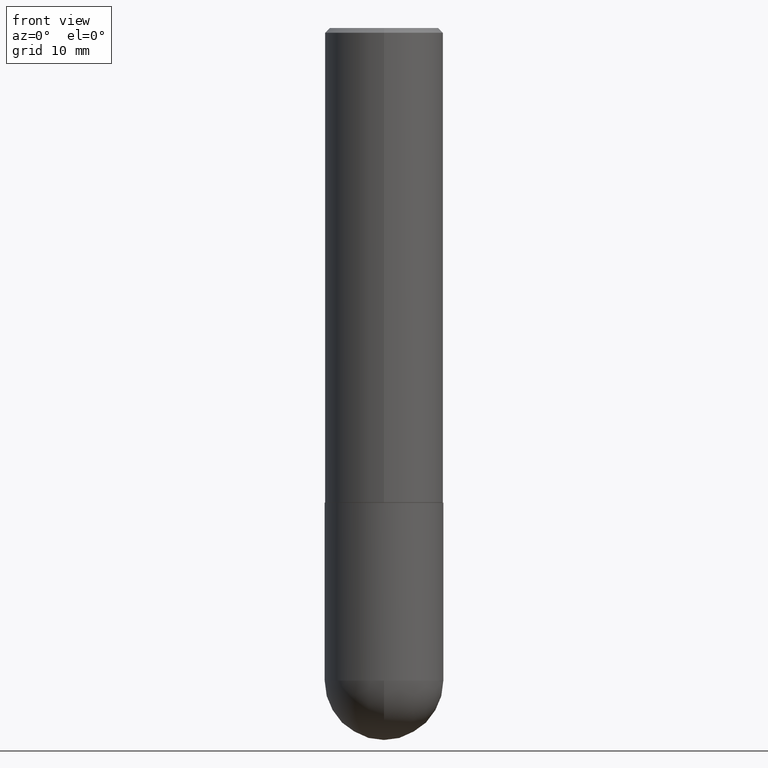
[diagram: clean part render]
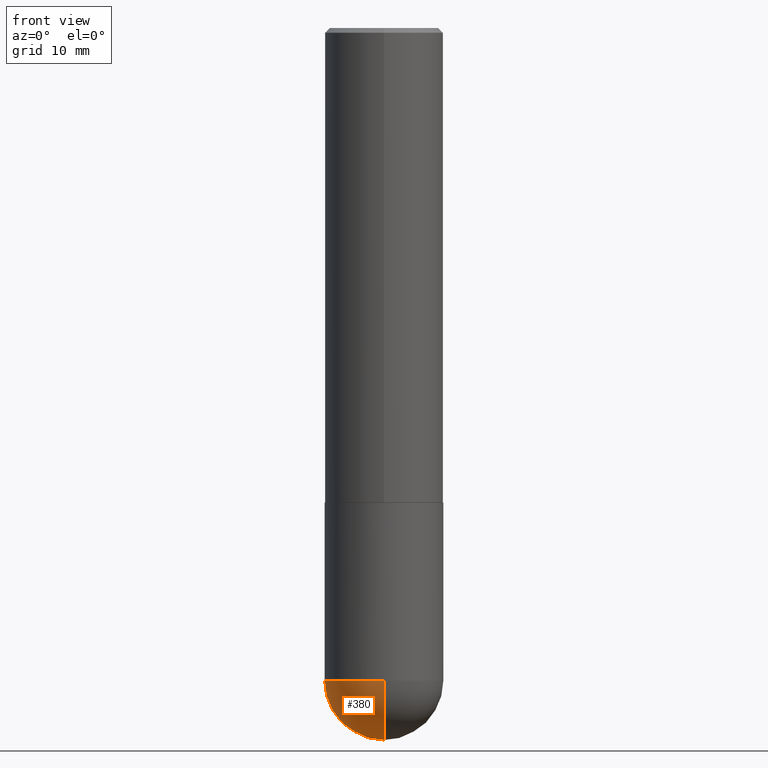
[diagram: same view with one face highlighted and labeled with its STEP entity id]
A machine part, front view. The second image highlights one B-rep face of the part: STEP entity #380.
In plain terms, the highlighted spherical surface has radius 6.35 mm.
Its self-contained STEP definition (entity closure, byte-faithful):
#5 = CARTESIAN_POINT ( 'NONE',  ( 6.725039217009124520E-29, -9.601573681818649859E-15, -2.750000000000000000 ) ) ;
#18 = ORIENTED_EDGE ( 'NONE', *, *, #128, .F. ) ;
#33 = CARTESIAN_POINT ( 'NONE',  ( 7.015976219256266741E-29, -1.093331829968014633E-14, -3.000000000000000888 ) ) ;
#48 = ORIENTED_EDGE ( 'NONE', *, *, #372, .F. ) ;
#65 = DIRECTION ( 'NONE',  ( -1.000000000000000000, 7.105427357601001070E-15, -4.926315508542082329E-29 ) ) ;
#69 = DIRECTION ( 'NONE',  ( 1.000000000000000000, -6.982962677686262766E-15, 0.000000000000000000 ) ) ;
#86 = DIRECTION ( 'NONE',  ( 1.000000000000000000, -6.982962677686265922E-15, 4.883557194083112340E-29 ) ) ;
#91 = CIRCLE ( 'NONE', #151, 0.2500000000000001110 ) ;
#94 = CARTESIAN_POINT ( 'NONE',  ( -1.776356839400184989E-15, -0.2500000000000098810, -2.749999999999998668 ) ) ;
#122 = CARTESIAN_POINT ( 'NONE',  ( 6.393919439095240515E-29, -1.007575604995870173E-14, -2.750000000000000444 ) ) ;
#128 = EDGE_CURVE ( 'NONE', #360, #225, #288, .T. ) ;
#129 = CARTESIAN_POINT ( 'NONE',  ( 6.393919439095240515E-29, -1.007575604995870173E-14, -2.750000000000000444 ) ) ;
#133 = ORIENTED_EDGE ( 'NONE', *, *, #340, .F. ) ;
#144 = AXIS2_PLACEMENT_3D ( 'NONE', #359, #188, #69 ) ;
#148 = CARTESIAN_POINT ( 'NONE',  ( 1.745740669421632745E-15, 0.2499999999999902300, -2.750000000000000888 ) ) ;
#151 = AXIS2_PLACEMENT_3D ( 'NONE', #129, #65, #222 ) ;
#158 = SPHERICAL_SURFACE ( 'NONE', #382, 0.2500000000000001110 ) ;
#188 = DIRECTION ( 'NONE',  ( -2.445468806185136597E-29, 3.491481338843145583E-15, 1.000000000000000000 ) ) ;
#193 = FACE_OUTER_BOUND ( 'NONE', #197, .T. ) ;
#195 = DIRECTION ( 'NONE',  ( -1.000000000000000000, 6.982962677686265922E-15, -4.883557194083113462E-29 ) ) ;
#197 = EDGE_LOOP ( 'NONE', ( #18, #236, #48, #133 ) ) ;
#216 = AXIS2_PLACEMENT_3D ( 'NONE', #5, #254, #324 ) ;
#222 = DIRECTION ( 'NONE',  ( -7.105427357601001859E-15, -1.000000000000000000, 0.000000000000000000 ) ) ;
#225 = VERTEX_POINT ( 'NONE', #148 ) ;
#236 = ORIENTED_EDGE ( 'NONE', *, *, #353, .T. ) ;
#238 = VERTEX_POINT ( 'NONE', #408 ) ;
#248 = CARTESIAN_POINT ( 'NONE',  ( 6.393919439095240515E-29, -1.007575604995870173E-14, -2.750000000000000444 ) ) ;
#254 = DIRECTION ( 'NONE',  ( -2.445468806185136597E-29, 3.491481338843145583E-15, 1.000000000000000000 ) ) ;
#283 = DIRECTION ( 'NONE',  ( 6.982962677686266711E-15, 1.000000000000000000, 0.000000000000000000 ) ) ;
#288 = CIRCLE ( 'NONE', #297, 0.2500000000000001110 ) ;
#297 = AXIS2_PLACEMENT_3D ( 'NONE', #248, #86, #283 ) ;
#324 = DIRECTION ( 'NONE',  ( 1.000000000000000000, -6.982962677686262766E-15, 0.000000000000000000 ) ) ;
#328 = CIRCLE ( 'NONE', #144, 0.2500000000000000000 ) ;
#329 = VERTEX_POINT ( 'NONE', #94 ) ;
#340 = EDGE_CURVE ( 'NONE', #225, #238, #388, .T. ) ;
#353 = EDGE_CURVE ( 'NONE', #360, #329, #91, .T. ) ;
#359 = CARTESIAN_POINT ( 'NONE',  ( 6.725039217009124520E-29, -9.601573681818649859E-15, -2.750000000000000000 ) ) ;
#360 = VERTEX_POINT ( 'NONE', #33 ) ;
#372 = EDGE_CURVE ( 'NONE', #238, #329, #328, .T. ) ;
#380 = ADVANCED_FACE ( 'NONE', ( #193 ), #158, .T. ) ;
#382 = AXIS2_PLACEMENT_3D ( 'NONE', #122, #195, #383 ) ;
#383 = DIRECTION ( 'NONE',  ( 6.982962677686265922E-15, 1.000000000000000000, -4.370956789862818783E-15 ) ) ;
#388 = CIRCLE ( 'NONE', #216, 0.2500000000000000000 ) ;
#408 = CARTESIAN_POINT ( 'NONE',  ( -0.2500000000000000000, -6.515911340352222020E-15, -2.750000000000000000 ) ) ;